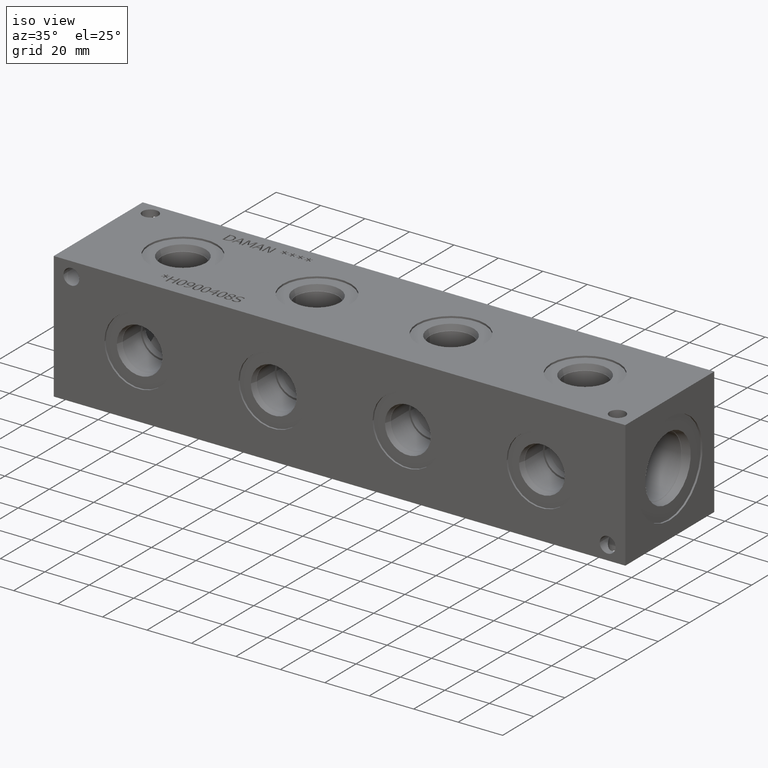
[diagram: clean part render]
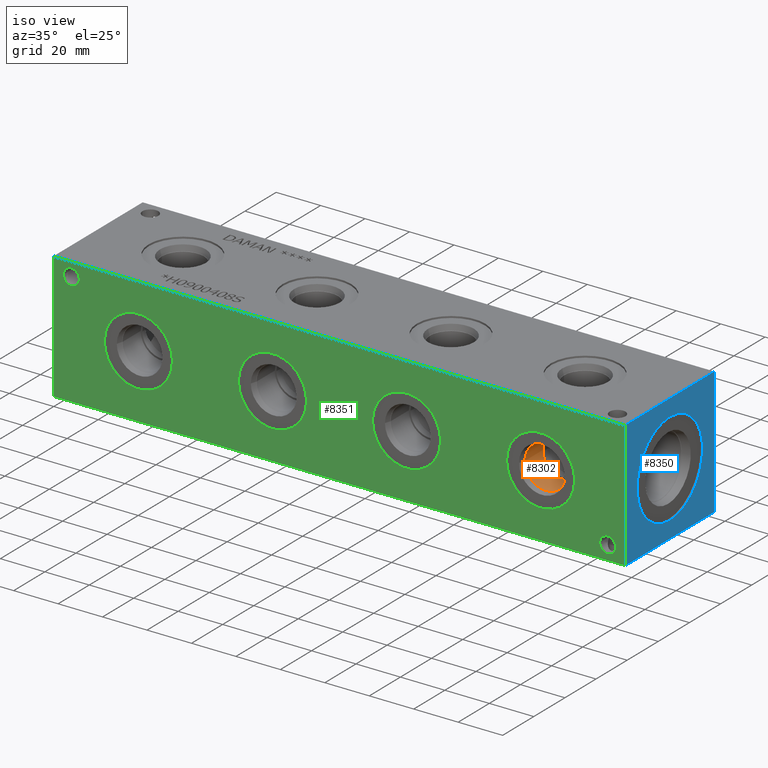
[diagram: same view with three faces highlighted in distinct colors, each labeled with its STEP entity id]
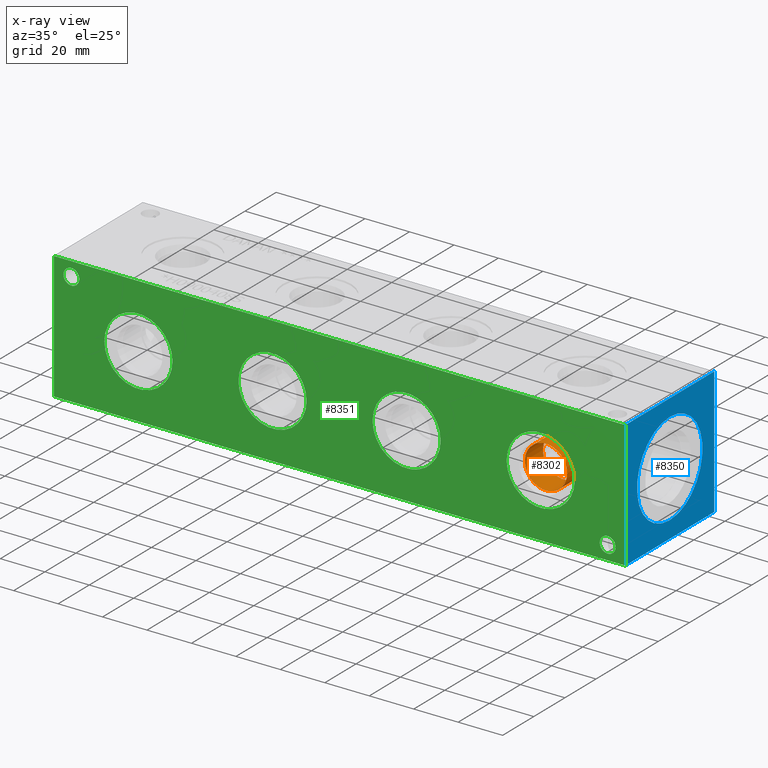
[diagram: x-ray of the same camera — body ghosted, the three highlighted faces saturated]
A machine part, iso view with three faces highlighted in distinct colors.
The next image is the same camera in x-ray (body ghosted, the three faces saturated) — at least one of them is partly hidden behind the body in this view.
Their STEP definitions:

[orange] entity #8302 — the highlighted cylindrical surface (bore or boss wall) has radius 9.525 mm, axis along (0, -1, 0).
#87=CYLINDRICAL_SURFACE('',#8757,9.525);
#186=CIRCLE('',#8696,9.525);
#222=CIRCLE('',#8755,9.525);
#223=CIRCLE('',#8756,9.525);
#966=FACE_OUTER_BOUND('',#1440,.T.);
#1440=EDGE_LOOP('',(#7239,#7240,#7241,#7242,#7243));
#2201=LINE('',#14323,#2934);
#2934=VECTOR('',#10347,9.525);
#3893=VERTEX_POINT('',#14201);
#3933=VERTEX_POINT('',#14318);
#3934=VERTEX_POINT('',#14319);
#5010=EDGE_CURVE('',#3893,#3893,#186,.T.);
#5063=EDGE_CURVE('',#3933,#3934,#222,.T.);
#5064=EDGE_CURVE('',#3934,#3933,#223,.T.);
#5065=EDGE_CURVE('',#3893,#3934,#2201,.T.);
#7239=ORIENTED_EDGE('',*,*,#5010,.T.);
#7240=ORIENTED_EDGE('',*,*,#5065,.T.);
#7241=ORIENTED_EDGE('',*,*,#5063,.F.);
#7242=ORIENTED_EDGE('',*,*,#5064,.F.);
#7243=ORIENTED_EDGE('',*,*,#5065,.F.);
#8302=ADVANCED_FACE('',(#966),#87,.F.);
#8696=AXIS2_PLACEMENT_3D('',#14203,#10206,#10207);
#8755=AXIS2_PLACEMENT_3D('',#14320,#10341,#10342);
#8756=AXIS2_PLACEMENT_3D('',#14321,#10343,#10344);
#8757=AXIS2_PLACEMENT_3D('',#14322,#10345,#10346);
#10206=DIRECTION('center_axis',(0.,-1.,0.));
#10207=DIRECTION('ref_axis',(1.,0.,0.));
#10341=DIRECTION('center_axis',(0.,-1.,0.));
#10342=DIRECTION('ref_axis',(1.,0.,0.));
#10343=DIRECTION('center_axis',(0.,-1.,0.));
#10344=DIRECTION('ref_axis',(1.,0.,0.));
#10345=DIRECTION('center_axis',(0.,-1.,0.));
#10346=DIRECTION('ref_axis',(1.,0.,0.));
#10347=DIRECTION('',(0.,1.,0.));
#14201=CARTESIAN_POINT('',(209.55,3.4036,28.575));
#14203=CARTESIAN_POINT('Origin',(219.075,3.4036,28.575));
#14318=CARTESIAN_POINT('',(228.6,15.0622,28.575));
#14319=CARTESIAN_POINT('',(209.55,15.0622,28.575));
#14320=CARTESIAN_POINT('Origin',(219.075,15.0622,28.575));
#14321=CARTESIAN_POINT('Origin',(219.075,15.0622,28.575));
#14322=CARTESIAN_POINT('Origin',(219.075,7.5311,28.575));
#14323=CARTESIAN_POINT('',(209.55,7.5311,28.575));

[blue] entity #8350 — the highlighted planar face has unit normal (1, 0, 0).
#136=CIRCLE('',#8610,21.0185);
#137=CIRCLE('',#8611,21.0185);
#351=FACE_BOUND('',#1501,.T.);
#587=PLANE('',#8873);
#1014=FACE_OUTER_BOUND('',#1500,.T.);
#1500=EDGE_LOOP('',(#7481,#7482,#7483,#7484));
#1501=EDGE_LOOP('',(#7485,#7486));
#1772=LINE('',#12896,#2505);
#2242=LINE('',#14554,#2975);
#2243=LINE('',#14557,#2976);
#2244=LINE('',#14558,#2977);
#2505=VECTOR('',#9264,10.);
#2975=VECTOR('',#10618,10.);
#2976=VECTOR('',#10621,10.);
#2977=VECTOR('',#10622,10.);
#3530=VERTEX_POINT('',#12893);
#3531=VERTEX_POINT('',#12895);
#3830=VERTEX_POINT('',#13956);
#3831=VERTEX_POINT('',#13957);
#4009=VERTEX_POINT('',#14552);
#4010=VERTEX_POINT('',#14556);
#4474=EDGE_CURVE('',#3530,#3531,#1772,.T.);
#4915=EDGE_CURVE('',#3830,#3831,#136,.T.);
#4916=EDGE_CURVE('',#3831,#3830,#137,.T.);
#5174=EDGE_CURVE('',#4009,#3531,#2242,.T.);
#5175=EDGE_CURVE('',#4010,#4009,#2243,.T.);
#5176=EDGE_CURVE('',#4010,#3530,#2244,.T.);
#7481=ORIENTED_EDGE('',*,*,#5175,.T.);
#7482=ORIENTED_EDGE('',*,*,#5174,.T.);
#7483=ORIENTED_EDGE('',*,*,#4474,.F.);
#7484=ORIENTED_EDGE('',*,*,#5176,.F.);
#7485=ORIENTED_EDGE('',*,*,#4915,.T.);
#7486=ORIENTED_EDGE('',*,*,#4916,.T.);
#8350=ADVANCED_FACE('',(#1014,#351),#587,.T.);
#8610=AXIS2_PLACEMENT_3D('',#13958,#10009,#10010);
#8611=AXIS2_PLACEMENT_3D('',#13959,#10011,#10012);
#8873=AXIS2_PLACEMENT_3D('',#14555,#10619,#10620);
#9264=DIRECTION('',(0.,1.,0.));
#10009=DIRECTION('center_axis',(-1.,0.,0.));
#10010=DIRECTION('ref_axis',(0.,0.,-1.));
#10011=DIRECTION('center_axis',(-1.,0.,0.));
#10012=DIRECTION('ref_axis',(0.,0.,-1.));
#10618=DIRECTION('',(0.,0.,1.));
#10619=DIRECTION('center_axis',(1.,0.,0.));
#10620=DIRECTION('ref_axis',(0.,1.,0.));
#10621=DIRECTION('',(0.,1.,0.));
#10622=DIRECTION('',(0.,0.,1.));
#12893=CARTESIAN_POINT('',(257.175,0.,57.15));
#12895=CARTESIAN_POINT('',(257.175,57.15,57.15));
#12896=CARTESIAN_POINT('',(257.175,0.,57.15));
#13956=CARTESIAN_POINT('',(257.175,28.575,7.5565));
#13957=CARTESIAN_POINT('',(257.175,28.575,49.5935));
#13958=CARTESIAN_POINT('Origin',(257.175,28.575,28.575));
#13959=CARTESIAN_POINT('Origin',(257.175,28.575,28.575));
#14552=CARTESIAN_POINT('',(257.175,57.15,0.));
#14554=CARTESIAN_POINT('',(257.175,57.15,0.));
#14555=CARTESIAN_POINT('Origin',(257.175,0.,0.));
#14556=CARTESIAN_POINT('',(257.175,0.,0.));
#14557=CARTESIAN_POINT('',(257.175,0.,0.));
#14558=CARTESIAN_POINT('',(257.175,0.,0.));

[green] entity #8351 — the highlighted planar face has unit normal (0, -1, 0).
#170=CIRCLE('',#8662,3.5687);
#171=CIRCLE('',#8663,3.5687);
#173=CIRCLE('',#8672,3.5687);
#174=CIRCLE('',#8673,3.5687);
#176=CIRCLE('',#8682,15.3162);
#177=CIRCLE('',#8683,15.3162);
#187=CIRCLE('',#8698,15.3162);
#188=CIRCLE('',#8699,15.3162);
#198=CIRCLE('',#8714,15.3162);
#199=CIRCLE('',#8715,15.3162);
#224=CIRCLE('',#8759,15.3162);
#225=CIRCLE('',#8760,15.3162);
#352=FACE_BOUND('',#1503,.T.);
#353=FACE_BOUND('',#1504,.T.);
#354=FACE_BOUND('',#1505,.T.);
#355=FACE_BOUND('',#1506,.T.);
#356=FACE_BOUND('',#1507,.T.);
#357=FACE_BOUND('',#1508,.T.);
#588=PLANE('',#8874);
#1015=FACE_OUTER_BOUND('',#1502,.T.);
#1502=EDGE_LOOP('',(#7487,#7488,#7489,#7490));
#1503=EDGE_LOOP('',(#7491,#7492));
#1504=EDGE_LOOP('',(#7493,#7494));
#1505=EDGE_LOOP('',(#7495,#7496));
#1506=EDGE_LOOP('',(#7497,#7498));
#1507=EDGE_LOOP('',(#7499,#7500));
#1508=EDGE_LOOP('',(#7501,#7502));
#1771=LINE('',#12894,#2504);
#2239=LINE('',#14549,#2972);
#2244=LINE('',#14558,#2977);
#2245=LINE('',#14560,#2978);
#2504=VECTOR('',#9263,10.);
#2972=VECTOR('',#10613,10.);
#2977=VECTOR('',#10622,10.);
#2978=VECTOR('',#10625,10.);
#3529=VERTEX_POINT('',#12892);
#3530=VERTEX_POINT('',#12893);
#3873=VERTEX_POINT('',#14138);
#3874=VERTEX_POINT('',#14139);
#3878=VERTEX_POINT('',#14156);
#3879=VERTEX_POINT('',#14157);
#3883=VERTEX_POINT('',#14174);
#3884=VERTEX_POINT('',#14175);
#3894=VERTEX_POINT('',#14205);
#3895=VERTEX_POINT('',#14206);
#3905=VERTEX_POINT('',#14236);
#3906=VERTEX_POINT('',#14237);
#3935=VERTEX_POINT('',#14325);
#3936=VERTEX_POINT('',#14326);
#4008=VERTEX_POINT('',#14547);
#4010=VERTEX_POINT('',#14556);
#4473=EDGE_CURVE('',#3529,#3530,#1771,.T.);
#4976=EDGE_CURVE('',#3873,#3874,#170,.T.);
#4977=EDGE_CURVE('',#3874,#3873,#171,.T.);
#4986=EDGE_CURVE('',#3878,#3879,#173,.T.);
#4987=EDGE_CURVE('',#3879,#3878,#174,.T.);
#4996=EDGE_CURVE('',#3883,#3884,#176,.T.);
#4997=EDGE_CURVE('',#3884,#3883,#177,.T.);
#5011=EDGE_CURVE('',#3894,#3895,#187,.T.);
#5012=EDGE_CURVE('',#3895,#3894,#188,.T.);
#5026=EDGE_CURVE('',#3905,#3906,#198,.T.);
#5027=EDGE_CURVE('',#3906,#3905,#199,.T.);
#5066=EDGE_CURVE('',#3935,#3936,#224,.T.);
#5067=EDGE_CURVE('',#3936,#3935,#225,.T.);
#5171=EDGE_CURVE('',#4008,#3529,#2239,.T.);
#5176=EDGE_CURVE('',#4010,#3530,#2244,.T.);
#5177=EDGE_CURVE('',#4008,#4010,#2245,.T.);
#7487=ORIENTED_EDGE('',*,*,#5177,.T.);
#7488=ORIENTED_EDGE('',*,*,#5176,.T.);
#7489=ORIENTED_EDGE('',*,*,#4473,.F.);
#7490=ORIENTED_EDGE('',*,*,#5171,.F.);
#7491=ORIENTED_EDGE('',*,*,#4976,.T.);
#7492=ORIENTED_EDGE('',*,*,#4977,.T.);
#7493=ORIENTED_EDGE('',*,*,#4986,.T.);
#7494=ORIENTED_EDGE('',*,*,#4987,.T.);
#7495=ORIENTED_EDGE('',*,*,#4996,.T.);
#7496=ORIENTED_EDGE('',*,*,#4997,.T.);
#7497=ORIENTED_EDGE('',*,*,#5011,.T.);
#7498=ORIENTED_EDGE('',*,*,#5012,.T.);
#7499=ORIENTED_EDGE('',*,*,#5026,.T.);
#7500=ORIENTED_EDGE('',*,*,#5027,.T.);
#7501=ORIENTED_EDGE('',*,*,#5066,.T.);
#7502=ORIENTED_EDGE('',*,*,#5067,.T.);
#8351=ADVANCED_FACE('',(#1015,#352,#353,#354,#355,#356,#357),#588,.T.);
#8662=AXIS2_PLACEMENT_3D('',#14140,#10128,#10129);
#8663=AXIS2_PLACEMENT_3D('',#14141,#10130,#10131);
#8672=AXIS2_PLACEMENT_3D('',#14158,#10151,#10152);
#8673=AXIS2_PLACEMENT_3D('',#14159,#10153,#10154);
#8682=AXIS2_PLACEMENT_3D('',#14176,#10174,#10175);
#8683=AXIS2_PLACEMENT_3D('',#14177,#10176,#10177);
#8698=AXIS2_PLACEMENT_3D('',#14207,#10210,#10211);
#8699=AXIS2_PLACEMENT_3D('',#14208,#10212,#10213);
#8714=AXIS2_PLACEMENT_3D('',#14238,#10246,#10247);
#8715=AXIS2_PLACEMENT_3D('',#14239,#10248,#10249);
#8759=AXIS2_PLACEMENT_3D('',#14327,#10350,#10351);
#8760=AXIS2_PLACEMENT_3D('',#14328,#10352,#10353);
#8874=AXIS2_PLACEMENT_3D('',#14559,#10623,#10624);
#9263=DIRECTION('',(1.,0.,0.));
#10128=DIRECTION('center_axis',(0.,1.,0.));
#10129=DIRECTION('ref_axis',(1.,0.,0.));
#10130=DIRECTION('center_axis',(0.,1.,0.));
#10131=DIRECTION('ref_axis',(1.,0.,0.));
#10151=DIRECTION('center_axis',(0.,1.,0.));
#10152=DIRECTION('ref_axis',(1.,0.,0.));
#10153=DIRECTION('center_axis',(0.,1.,0.));
#10154=DIRECTION('ref_axis',(1.,0.,0.));
#10174=DIRECTION('center_axis',(0.,1.,0.));
#10175=DIRECTION('ref_axis',(1.,0.,0.));
#10176=DIRECTION('center_axis',(0.,1.,0.));
#10177=DIRECTION('ref_axis',(1.,0.,0.));
#10210=DIRECTION('center_axis',(0.,1.,0.));
#10211=DIRECTION('ref_axis',(1.,0.,0.));
#10212=DIRECTION('center_axis',(0.,1.,0.));
#10213=DIRECTION('ref_axis',(1.,0.,0.));
#10246=DIRECTION('center_axis',(0.,1.,0.));
#10247=DIRECTION('ref_axis',(1.,0.,0.));
#10248=DIRECTION('center_axis',(0.,1.,0.));
#10249=DIRECTION('ref_axis',(1.,0.,0.));
#10350=DIRECTION('center_axis',(0.,1.,0.));
#10351=DIRECTION('ref_axis',(1.,0.,0.));
#10352=DIRECTION('center_axis',(0.,1.,0.));
#10353=DIRECTION('ref_axis',(1.,0.,0.));
#10613=DIRECTION('',(0.,0.,1.));
#10622=DIRECTION('',(0.,0.,1.));
#10623=DIRECTION('center_axis',(0.,-1.,0.));
#10624=DIRECTION('ref_axis',(1.,0.,0.));
#10625=DIRECTION('',(1.,0.,0.));
#12892=CARTESIAN_POINT('',(0.,0.,57.15));
#12893=CARTESIAN_POINT('',(257.175,0.,57.15));
#12894=CARTESIAN_POINT('',(0.,0.,57.15));
#14138=CARTESIAN_POINT('',(252.7935,0.,6.35));
#14139=CARTESIAN_POINT('',(245.6561,0.,6.35));
#14140=CARTESIAN_POINT('Origin',(249.2248,0.,6.35));
#14141=CARTESIAN_POINT('Origin',(249.2248,0.,6.35));
#14156=CARTESIAN_POINT('',(11.4935,0.,50.8));
#14157=CARTESIAN_POINT('',(4.3561,0.,50.8));
#14158=CARTESIAN_POINT('Origin',(7.9248,0.,50.8));
#14159=CARTESIAN_POINT('Origin',(7.9248,0.,50.8));
#14174=CARTESIAN_POINT('',(234.3912,0.,28.575));
#14175=CARTESIAN_POINT('',(203.7588,0.,28.575));
#14176=CARTESIAN_POINT('Origin',(219.075,0.,28.575));
#14177=CARTESIAN_POINT('Origin',(219.075,0.,28.575));
#14205=CARTESIAN_POINT('',(174.0662,0.,28.575));
#14206=CARTESIAN_POINT('',(143.4338,0.,28.575));
#14207=CARTESIAN_POINT('Origin',(158.75,0.,28.575));
#14208=CARTESIAN_POINT('Origin',(158.75,0.,28.575));
#14236=CARTESIAN_POINT('',(113.7412,0.,28.575));
#14237=CARTESIAN_POINT('',(83.1088,0.,28.575));
#14238=CARTESIAN_POINT('Origin',(98.425,0.,28.575));
#14239=CARTESIAN_POINT('Origin',(98.425,0.,28.575));
#14325=CARTESIAN_POINT('',(53.4162,0.,28.575));
#14326=CARTESIAN_POINT('',(22.7838,0.,28.575));
#14327=CARTESIAN_POINT('Origin',(38.1,0.,28.575));
#14328=CARTESIAN_POINT('Origin',(38.1,0.,28.575));
#14547=CARTESIAN_POINT('',(0.,0.,0.));
#14549=CARTESIAN_POINT('',(0.,0.,0.));
#14556=CARTESIAN_POINT('',(257.175,0.,0.));
#14558=CARTESIAN_POINT('',(257.175,0.,0.));
#14559=CARTESIAN_POINT('Origin',(0.,0.,0.));
#14560=CARTESIAN_POINT('',(0.,0.,0.));